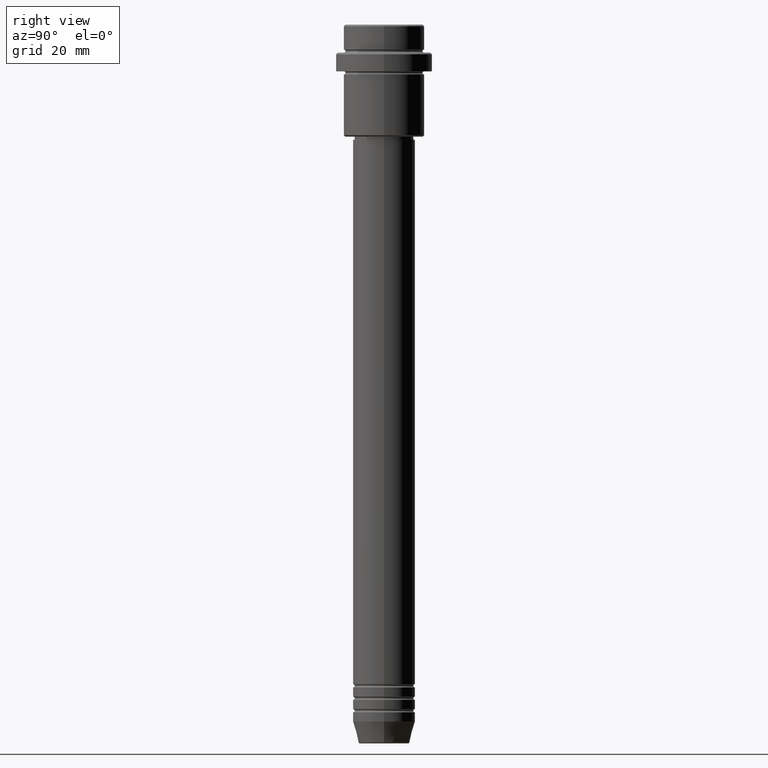
[diagram: clean part render]
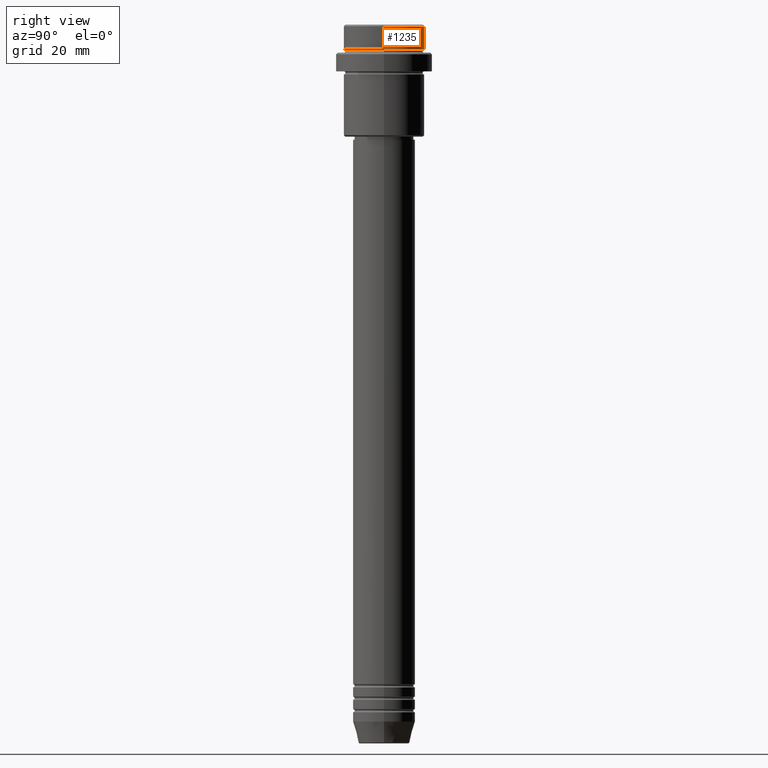
[diagram: same view with one face highlighted and labeled with its STEP entity id]
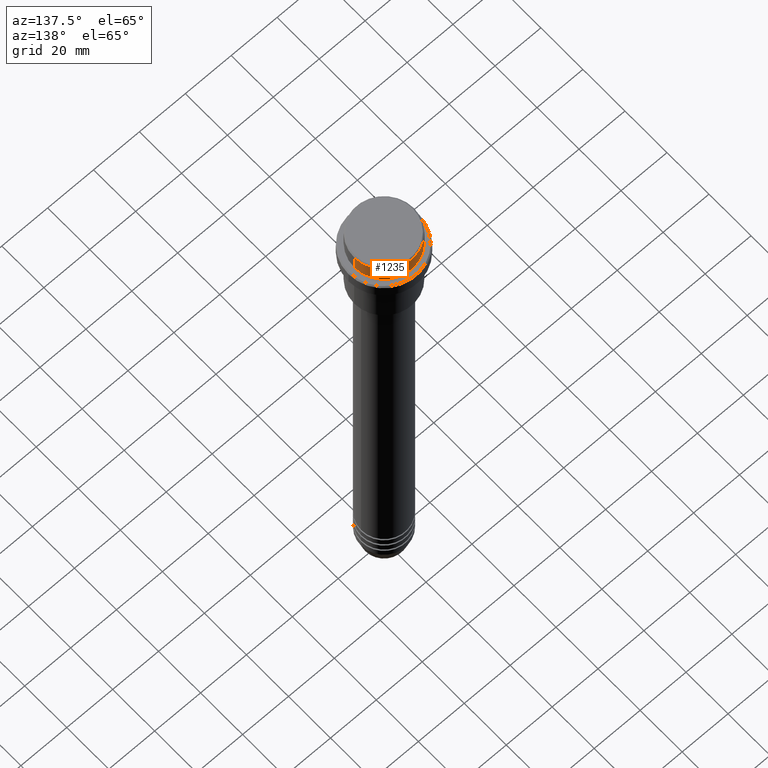
[diagram: same view with one face highlighted and labeled with its STEP entity id]
A machine part, right view. The second image highlights one B-rep face of the part: STEP entity #1235.
A second angle (auxiliary view) of the same face is appended — the face is thin or edge-on in the first view.
In plain terms, the highlighted cylindrical surface (partial cylindrical patch) has radius 13 mm, axis along (-0, -0, 1).
Its self-contained STEP definition (entity closure, byte-faithful):
#52 = VERTEX_POINT ( 'NONE', #1068 ) ;
#58 = CARTESIAN_POINT ( 'NONE',  ( -12.99999999999999822, 1.592040838891558898E-15, -0.5000000000000316414 ) ) ;
#82 = EDGE_CURVE ( 'NONE', #1078, #52, #1105, .T. ) ;
#88 = VECTOR ( 'NONE', #754, 1000.000000000000000 ) ;
#174 = CYLINDRICAL_SURFACE ( 'NONE', #1000, 12.99999999999999822 ) ;
#216 = DIRECTION ( 'NONE',  ( 1.000000000000000000, 0.000000000000000000, 0.000000000000000000 ) ) ;
#299 = CARTESIAN_POINT ( 'NONE',  ( 12.99999999999999822, 0.000000000000000000, 0.000000000000000000 ) ) ;
#327 = CARTESIAN_POINT ( 'NONE',  ( 12.99999999999999822, 0.000000000000000000, -7.999999999999998224 ) ) ;
#329 = CARTESIAN_POINT ( 'NONE',  ( 0.000000000000000000, 0.000000000000000000, -0.5000000000000316414 ) ) ;
#412 = VERTEX_POINT ( 'NONE', #327 ) ;
#464 = DIRECTION ( 'NONE',  ( 0.000000000000000000, 0.000000000000000000, -1.000000000000000000 ) ) ;
#470 = VERTEX_POINT ( 'NONE', #992 ) ;
#556 = CIRCLE ( 'NONE', #913, 12.99999999999999822 ) ;
#615 = ORIENTED_EDGE ( 'NONE', *, *, #1084, .T. ) ;
#648 = LINE ( 'NONE', #299, #88 ) ;
#659 = ORIENTED_EDGE ( 'NONE', *, *, #683, .T. ) ;
#683 = EDGE_CURVE ( 'NONE', #412, #470, #556, .T. ) ;
#754 = DIRECTION ( 'NONE',  ( -0.000000000000000000, -0.000000000000000000, 1.000000000000000000 ) ) ;
#857 = AXIS2_PLACEMENT_3D ( 'NONE', #329, #464, #216 ) ;
#886 = DIRECTION ( 'NONE',  ( 1.000000000000000000, 0.000000000000000000, 0.000000000000000000 ) ) ;
#891 = VECTOR ( 'NONE', #939, 1000.000000000000000 ) ;
#913 = AXIS2_PLACEMENT_3D ( 'NONE', #951, #1148, #1251 ) ;
#921 = EDGE_CURVE ( 'NONE', #412, #52, #648, .T. ) ;
#939 = DIRECTION ( 'NONE',  ( -0.000000000000000000, -0.000000000000000000, 1.000000000000000000 ) ) ;
#949 = CARTESIAN_POINT ( 'NONE',  ( -12.99999999999999822, 1.592040838891558898E-15, 0.000000000000000000 ) ) ;
#951 = CARTESIAN_POINT ( 'NONE',  ( 0.000000000000000000, 0.000000000000000000, -7.999999999999998224 ) ) ;
#972 = DIRECTION ( 'NONE',  ( -0.000000000000000000, -0.000000000000000000, 1.000000000000000000 ) ) ;
#992 = CARTESIAN_POINT ( 'NONE',  ( -12.99999999999999822, 1.592040838891558898E-15, -7.999999999999998224 ) ) ;
#1000 = AXIS2_PLACEMENT_3D ( 'NONE', #1154, #972, #886 ) ;
#1068 = CARTESIAN_POINT ( 'NONE',  ( 12.99999999999999822, 0.000000000000000000, -0.5000000000000316414 ) ) ;
#1078 = VERTEX_POINT ( 'NONE', #58 ) ;
#1084 = EDGE_CURVE ( 'NONE', #470, #1078, #1383, .T. ) ;
#1105 = CIRCLE ( 'NONE', #857, 12.99999999999999822 ) ;
#1138 = EDGE_LOOP ( 'NONE', ( #659, #615, #1307, #1345 ) ) ;
#1148 = DIRECTION ( 'NONE',  ( -0.000000000000000000, -0.000000000000000000, 1.000000000000000000 ) ) ;
#1154 = CARTESIAN_POINT ( 'NONE',  ( 0.000000000000000000, 0.000000000000000000, 0.000000000000000000 ) ) ;
#1163 = FACE_OUTER_BOUND ( 'NONE', #1138, .T. ) ;
#1235 = ADVANCED_FACE ( 'NONE', ( #1163 ), #174, .T. ) ;
#1251 = DIRECTION ( 'NONE',  ( 1.000000000000000000, 0.000000000000000000, 0.000000000000000000 ) ) ;
#1307 = ORIENTED_EDGE ( 'NONE', *, *, #82, .T. ) ;
#1345 = ORIENTED_EDGE ( 'NONE', *, *, #921, .F. ) ;
#1383 = LINE ( 'NONE', #949, #891 ) ;